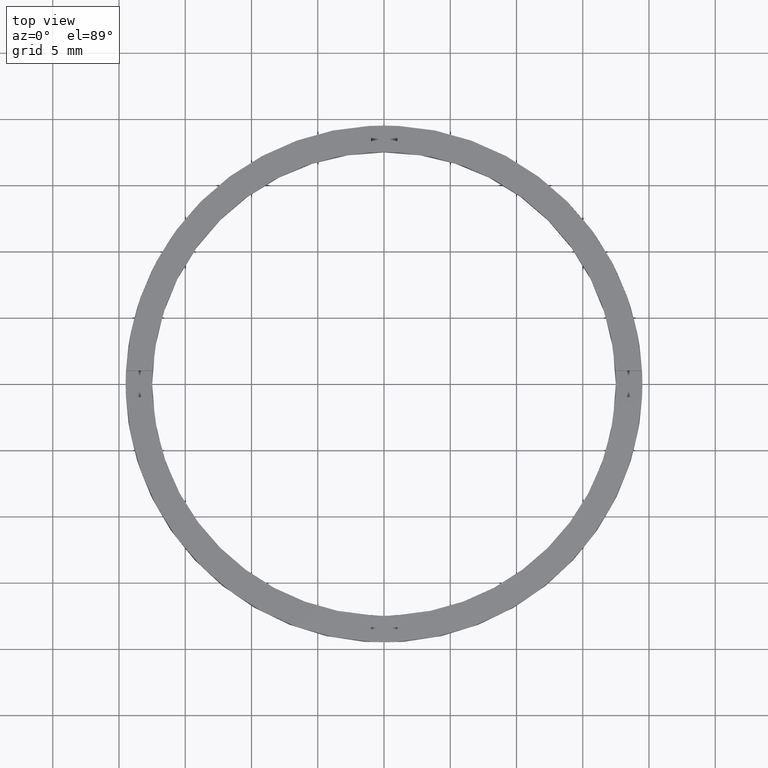
[diagram: clean part render]
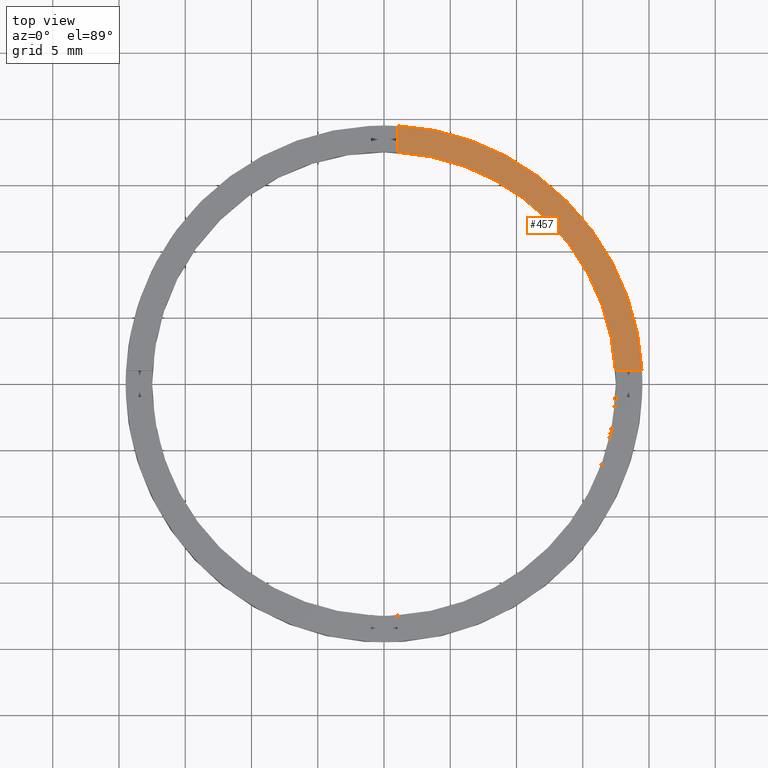
[diagram: same view with one face highlighted and labeled with its STEP entity id]
A machine part, top view. The second image highlights one B-rep face of the part: STEP entity #457.
In plain terms, the highlighted planar face has unit normal (0, 0, 1).
Its self-contained STEP definition (entity closure, byte-faithful):
#17 = AXIS2_PLACEMENT_3D ( 'NONE', #35, #449, #145 ) ;
#28 = EDGE_CURVE ( 'NONE', #725, #525, #576, .T. ) ;
#35 = CARTESIAN_POINT ( 'NONE',  ( 0.000000000000000000, 0.000000000000000000, 2.500000000000000000 ) ) ;
#51 = CIRCLE ( 'NONE', #17, 17.50000000000000355 ) ;
#64 = DIRECTION ( 'NONE',  ( -1.000000000000000000, -4.336808689942017120E-17, -0.000000000000000000 ) ) ;
#66 = CARTESIAN_POINT ( 'NONE',  ( 0.9999999999999742428, 19.47434209415044393, 2.500000000000000000 ) ) ;
#105 = CARTESIAN_POINT ( 'NONE',  ( 0.000000000000000000, 0.000000000000000000, 2.500000000000000000 ) ) ;
#112 = EDGE_LOOP ( 'NONE', ( #660, #115, #734, #643 ) ) ;
#113 = DIRECTION ( 'NONE',  ( 0.000000000000000000, 0.000000000000000000, 1.000000000000000000 ) ) ;
#115 = ORIENTED_EDGE ( 'NONE', *, *, #213, .F. ) ;
#145 = DIRECTION ( 'NONE',  ( 1.000000000000000000, 0.000000000000000000, 0.000000000000000000 ) ) ;
#150 = DIRECTION ( 'NONE',  ( 0.000000000000000000, 1.000000000000000000, 0.000000000000000000 ) ) ;
#158 = FACE_OUTER_BOUND ( 'NONE', #112, .T. ) ;
#185 = DIRECTION ( 'NONE',  ( 0.000000000000000000, 0.000000000000000000, 1.000000000000000000 ) ) ;
#203 = AXIS2_PLACEMENT_3D ( 'NONE', #105, #113, #727 ) ;
#213 = EDGE_CURVE ( 'NONE', #347, #725, #51, .T. ) ;
#304 = VECTOR ( 'NONE', #64, 1000.000000000000000 ) ;
#347 = VERTEX_POINT ( 'NONE', #425 ) ;
#356 = CARTESIAN_POINT ( 'NONE',  ( 0.9999999999999742428, 17.47140520965614741, 2.500000000000000000 ) ) ;
#377 = EDGE_CURVE ( 'NONE', #715, #347, #543, .T. ) ;
#412 = CARTESIAN_POINT ( 'NONE',  ( 0.000000000000000000, 0.000000000000000000, 2.500000000000000000 ) ) ;
#414 = CIRCLE ( 'NONE', #655, 19.50000000000000000 ) ;
#425 = CARTESIAN_POINT ( 'NONE',  ( 17.47140520965616162, 0.9999999999998412381, 2.500000000000000000 ) ) ;
#449 = DIRECTION ( 'NONE',  ( 0.000000000000000000, 0.000000000000000000, 1.000000000000000000 ) ) ;
#457 = ADVANCED_FACE ( 'NONE', ( #158 ), #779, .T. ) ;
#485 = EDGE_CURVE ( 'NONE', #715, #525, #414, .T. ) ;
#525 = VERTEX_POINT ( 'NONE', #66 ) ;
#531 = DIRECTION ( 'NONE',  ( 1.000000000000000000, 0.000000000000000000, 0.000000000000000000 ) ) ;
#543 = LINE ( 'NONE', #736, #304 ) ;
#570 = CARTESIAN_POINT ( 'NONE',  ( 19.47434209415045459, 0.9999999999998414602, 2.500000000000000000 ) ) ;
#576 = LINE ( 'NONE', #770, #577 ) ;
#577 = VECTOR ( 'NONE', #150, 1000.000000000000000 ) ;
#643 = ORIENTED_EDGE ( 'NONE', *, *, #485, .T. ) ;
#655 = AXIS2_PLACEMENT_3D ( 'NONE', #412, #185, #531 ) ;
#660 = ORIENTED_EDGE ( 'NONE', *, *, #28, .F. ) ;
#715 = VERTEX_POINT ( 'NONE', #570 ) ;
#725 = VERTEX_POINT ( 'NONE', #356 ) ;
#727 = DIRECTION ( 'NONE',  ( 1.000000000000000000, 0.000000000000000000, -0.000000000000000000 ) ) ;
#734 = ORIENTED_EDGE ( 'NONE', *, *, #377, .F. ) ;
#736 = CARTESIAN_POINT ( 'NONE',  ( 9.499999999999994671, 0.9999999999998411271, 2.500000000000000000 ) ) ;
#770 = CARTESIAN_POINT ( 'NONE',  ( 0.9999999999999746869, 9.500000000000000000, 2.500000000000000000 ) ) ;
#779 = PLANE ( 'NONE',  #203 ) ;